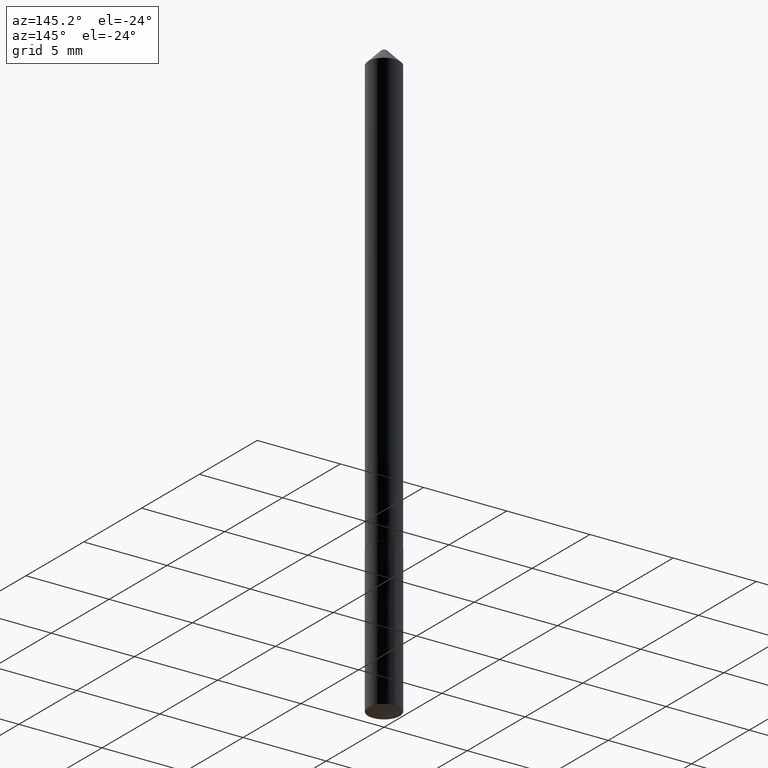
[diagram: clean part render]
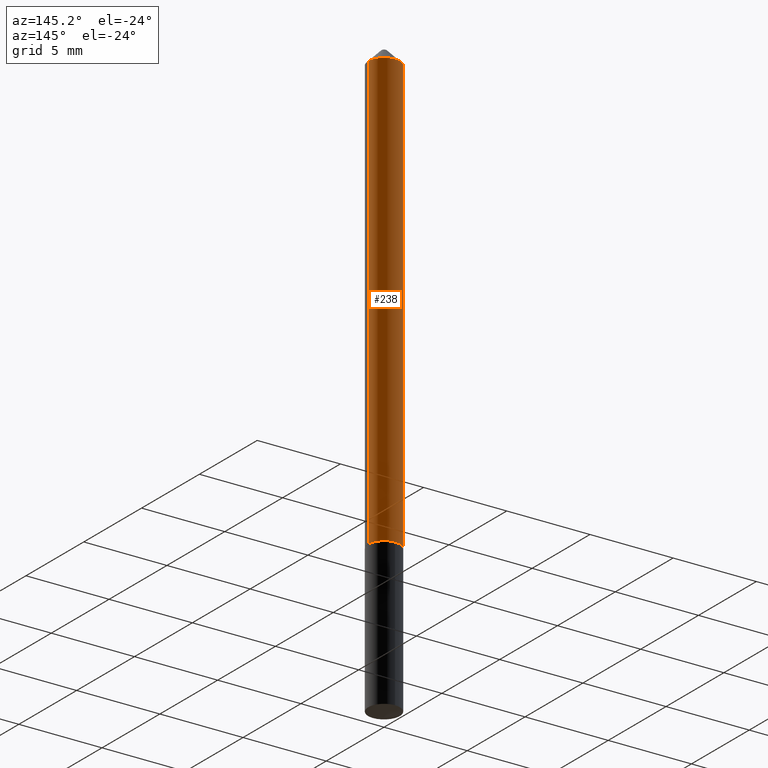
[diagram: same view with one face highlighted and labeled with its STEP entity id]
A machine part, auxiliary view. The second image highlights one B-rep face of the part: STEP entity #238.
In plain terms, the highlighted cylindrical surface (edge-blend (fillet) strip) has radius 0.95 mm, axis along (-0, 0, 1).
Its self-contained STEP definition (entity closure, byte-faithful):
#3 = CARTESIAN_POINT ( 'NONE',  ( -0.03740000000000007208, 2.657429831742779816E-16, -1.839681723755338193E-30 ) ) ;
#35 = CARTESIAN_POINT ( 'NONE',  ( -0.03740000000000013453, -3.429990013991191210E-15, -1.058499999999999996 ) ) ;
#57 = LINE ( 'NONE', #207, #369 ) ;
#73 = VERTEX_POINT ( 'NONE', #107 ) ;
#89 = DIRECTION ( 'NONE',  ( -2.445468806185136877E-29, 3.491481338843145188E-15, 1.000000000000000000 ) ) ;
#105 = DIRECTION ( 'NONE',  ( -2.445468806185136597E-29, 3.491481338843145583E-15, 1.000000000000000000 ) ) ;
#107 = CARTESIAN_POINT ( 'NONE',  ( -0.03740000000000000269, -1.636677911327879883E-15, -0.03125000000000020123 ) ) ;
#136 = CARTESIAN_POINT ( 'NONE',  ( 0.03740000000000013453, -3.956895801310936972E-15, -1.058499999999999996 ) ) ;
#151 = EDGE_CURVE ( 'NONE', #309, #225, #57, .T. ) ;
#164 = ORIENTED_EDGE ( 'NONE', *, *, #212, .T. ) ;
#167 = CARTESIAN_POINT ( 'NONE',  ( 0.03740000000000000269, -3.702715959843154023E-16, -0.03125000000000020123 ) ) ;
#174 = AXIS2_PLACEMENT_3D ( 'NONE', #382, #105, #352 ) ;
#181 = ORIENTED_EDGE ( 'NONE', *, *, #332, .T. ) ;
#196 = VECTOR ( 'NONE', #89, 39.37007874015748143 ) ;
#202 = DIRECTION ( 'NONE',  ( -2.445468806185136597E-29, 3.491481338843145583E-15, 1.000000000000000000 ) ) ;
#204 = CARTESIAN_POINT ( 'NONE',  ( 0.000000000000000000, 0.000000000000000000, 0.000000000000000000 ) ) ;
#207 = CARTESIAN_POINT ( 'NONE',  ( 0.03740000000000007208, -2.611628041454668440E-16, 1.823690114147683585E-30 ) ) ;
#211 = FACE_OUTER_BOUND ( 'NONE', #252, .T. ) ;
#212 = EDGE_CURVE ( 'NONE', #309, #282, #342, .T. ) ;
#225 = VERTEX_POINT ( 'NONE', #167 ) ;
#226 = ORIENTED_EDGE ( 'NONE', *, *, #313, .F. ) ;
#238 = ADVANCED_FACE ( 'NONE', ( #211 ), #239, .T. ) ;
#239 = CYLINDRICAL_SURFACE ( 'NONE', #364, 0.03740000000000007208 ) ;
#252 = EDGE_LOOP ( 'NONE', ( #164, #181, #226, #319 ) ) ;
#268 = LINE ( 'NONE', #3, #196 ) ;
#269 = DIRECTION ( 'NONE',  ( 1.000000000000000000, -6.982962677686263555E-15, 0.000000000000000000 ) ) ;
#282 = VERTEX_POINT ( 'NONE', #35 ) ;
#309 = VERTEX_POINT ( 'NONE', #136 ) ;
#313 = EDGE_CURVE ( 'NONE', #225, #73, #353, .T. ) ;
#319 = ORIENTED_EDGE ( 'NONE', *, *, #151, .F. ) ;
#328 = DIRECTION ( 'NONE',  ( 1.000000000000000000, -6.982962677686265922E-15, 4.876176775795935793E-29 ) ) ;
#332 = EDGE_CURVE ( 'NONE', #282, #73, #268, .T. ) ;
#334 = DIRECTION ( 'NONE',  ( -2.445468806185136597E-29, 3.491481338843145583E-15, 1.000000000000000000 ) ) ;
#342 = CIRCLE ( 'NONE', #359, 0.03740000000000013453 ) ;
#349 = DIRECTION ( 'NONE',  ( -2.445468806185136877E-29, 3.491481338843145188E-15, 1.000000000000000000 ) ) ;
#352 = DIRECTION ( 'NONE',  ( 1.000000000000000000, -6.982962677686266711E-15, 0.000000000000000000 ) ) ;
#353 = CIRCLE ( 'NONE', #174, 0.03740000000000000269 ) ;
#359 = AXIS2_PLACEMENT_3D ( 'NONE', #361, #334, #269 ) ;
#361 = CARTESIAN_POINT ( 'NONE',  ( 2.588528731346966904E-29, -3.695732997165469783E-15, -1.058499999999999996 ) ) ;
#364 = AXIS2_PLACEMENT_3D ( 'NONE', #204, #202, #328 ) ;
#369 = VECTOR ( 'NONE', #349, 39.37007874015748143 ) ;
#382 = CARTESIAN_POINT ( 'NONE',  ( 7.642090019328601786E-31, -1.091087918388490144E-16, -0.03125000000000020123 ) ) ;